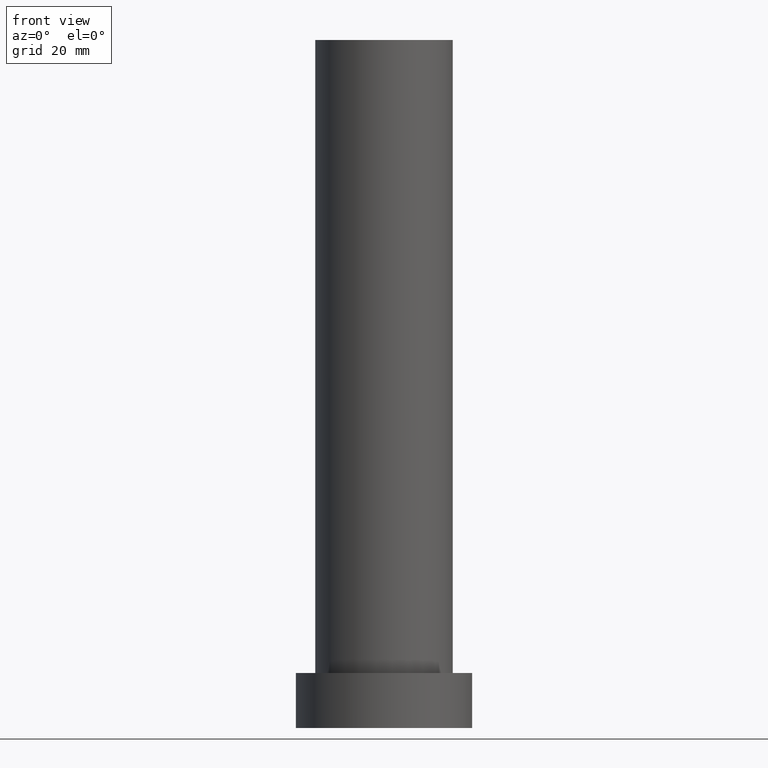
[diagram: clean part render]
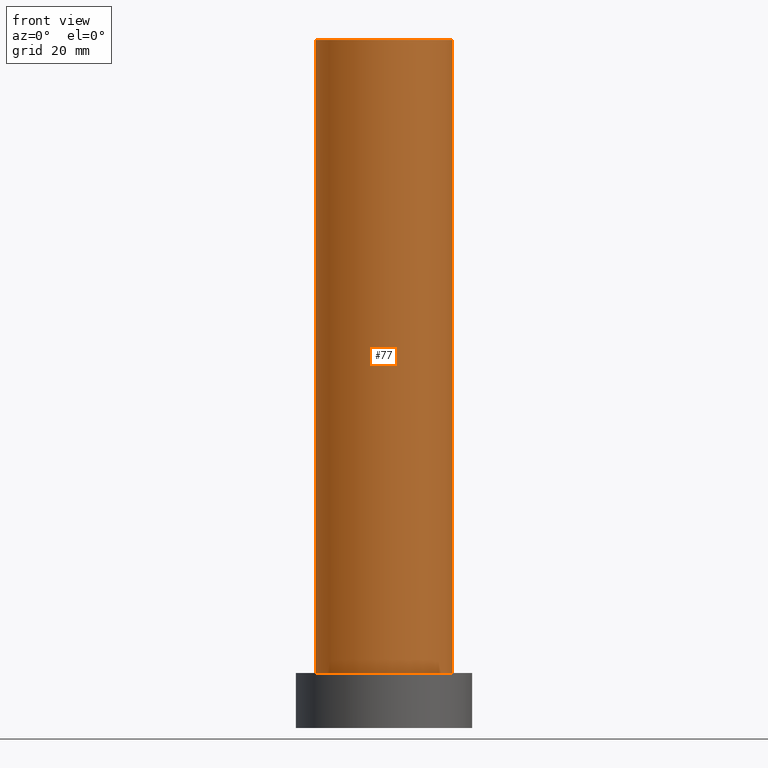
[diagram: same view with one face highlighted and labeled with its STEP entity id]
A machine part, front view. The second image highlights one B-rep face of the part: STEP entity #77.
In plain terms, the highlighted cylindrical surface (partial cylindrical patch) has radius 12.5 mm, axis along (-0, -0, -1).
Its self-contained STEP definition (entity closure, byte-faithful):
#6 = EDGE_CURVE ( 'NONE', #225, #93, #152, .T. ) ;
#7 = AXIS2_PLACEMENT_3D ( 'NONE', #226, #147, #50 ) ;
#10 = ORIENTED_EDGE ( 'NONE', *, *, #6, .T. ) ;
#14 = EDGE_LOOP ( 'NONE', ( #244, #33, #169, #10 ) ) ;
#16 = CARTESIAN_POINT ( 'NONE',  ( 12.50000000000000000, 1.530808498934191521E-15, 10.00000000000000000 ) ) ;
#25 = CIRCLE ( 'NONE', #116, 12.50000000000000000 ) ;
#31 = VERTEX_POINT ( 'NONE', #204 ) ;
#33 = ORIENTED_EDGE ( 'NONE', *, *, #105, .F. ) ;
#47 = VECTOR ( 'NONE', #213, 1000.000000000000000 ) ;
#50 = DIRECTION ( 'NONE',  ( 1.000000000000000000, 0.000000000000000000, 0.000000000000000000 ) ) ;
#77 = ADVANCED_FACE ( 'NONE', ( #192 ), #250, .T. ) ;
#78 = CARTESIAN_POINT ( 'NONE',  ( 12.50000000000000000, 1.530808498934191521E-15, 125.0000000000000000 ) ) ;
#80 = DIRECTION ( 'NONE',  ( -0.000000000000000000, -0.000000000000000000, -1.000000000000000000 ) ) ;
#93 = VERTEX_POINT ( 'NONE', #16 ) ;
#95 = CARTESIAN_POINT ( 'NONE',  ( 0.000000000000000000, 0.000000000000000000, 125.0000000000000000 ) ) ;
#96 = EDGE_CURVE ( 'NONE', #145, #225, #130, .T. ) ;
#98 = VECTOR ( 'NONE', #150, 1000.000000000000000 ) ;
#105 = EDGE_CURVE ( 'NONE', #145, #31, #25, .T. ) ;
#116 = AXIS2_PLACEMENT_3D ( 'NONE', #95, #174, #149 ) ;
#126 = EDGE_CURVE ( 'NONE', #31, #93, #234, .T. ) ;
#130 = LINE ( 'NONE', #209, #47 ) ;
#131 = DIRECTION ( 'NONE',  ( -1.000000000000000000, 0.000000000000000000, 0.000000000000000000 ) ) ;
#145 = VERTEX_POINT ( 'NONE', #212 ) ;
#147 = DIRECTION ( 'NONE',  ( 0.000000000000000000, 0.000000000000000000, 1.000000000000000000 ) ) ;
#149 = DIRECTION ( 'NONE',  ( 1.000000000000000000, 0.000000000000000000, 0.000000000000000000 ) ) ;
#150 = DIRECTION ( 'NONE',  ( -0.000000000000000000, -0.000000000000000000, -1.000000000000000000 ) ) ;
#152 = CIRCLE ( 'NONE', #7, 12.50000000000000000 ) ;
#161 = CARTESIAN_POINT ( 'NONE',  ( -12.50000000000000000, 0.000000000000000000, 10.00000000000000000 ) ) ;
#169 = ORIENTED_EDGE ( 'NONE', *, *, #96, .T. ) ;
#174 = DIRECTION ( 'NONE',  ( 0.000000000000000000, 0.000000000000000000, 1.000000000000000000 ) ) ;
#192 = FACE_OUTER_BOUND ( 'NONE', #14, .T. ) ;
#204 = CARTESIAN_POINT ( 'NONE',  ( 12.50000000000000000, 1.530808498934191521E-15, 125.0000000000000000 ) ) ;
#209 = CARTESIAN_POINT ( 'NONE',  ( -12.50000000000000000, 0.000000000000000000, 125.0000000000000000 ) ) ;
#212 = CARTESIAN_POINT ( 'NONE',  ( -12.50000000000000000, 0.000000000000000000, 125.0000000000000000 ) ) ;
#213 = DIRECTION ( 'NONE',  ( -0.000000000000000000, -0.000000000000000000, -1.000000000000000000 ) ) ;
#220 = AXIS2_PLACEMENT_3D ( 'NONE', #236, #80, #131 ) ;
#225 = VERTEX_POINT ( 'NONE', #161 ) ;
#226 = CARTESIAN_POINT ( 'NONE',  ( 0.000000000000000000, 0.000000000000000000, 10.00000000000000000 ) ) ;
#234 = LINE ( 'NONE', #78, #98 ) ;
#236 = CARTESIAN_POINT ( 'NONE',  ( 0.000000000000000000, 0.000000000000000000, 125.0000000000000000 ) ) ;
#244 = ORIENTED_EDGE ( 'NONE', *, *, #126, .F. ) ;
#250 = CYLINDRICAL_SURFACE ( 'NONE', #220, 12.50000000000000000 ) ;